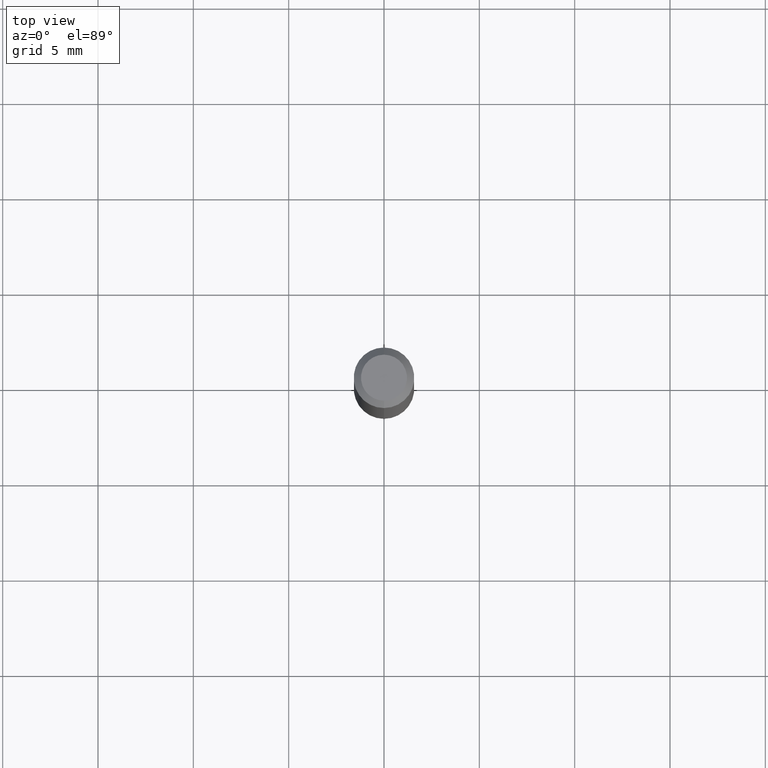
[diagram: clean part render]
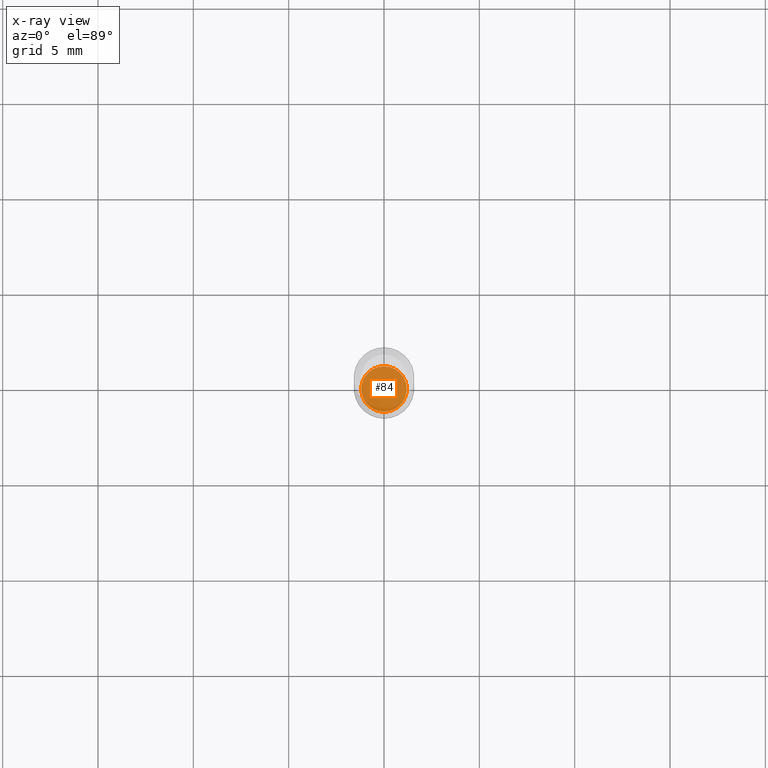
[diagram: x-ray — body ghosted, one internal face saturated and labeled with its STEP entity id]
A machine part, top view, then the same camera in x-ray: the body is ghosted and one INTERNAL B-rep face — a face not visible from any outside direction — is saturated and labeled: STEP entity #84.
In plain terms, the highlighted planar face has unit normal (-0, 0, 1).
Its self-contained STEP definition (entity closure, byte-faithful):
#4 = CIRCLE ( 'NONE', #240, 0.04699999999999999317 ) ;
#17 = DIRECTION ( 'NONE',  ( -2.445438376060173173E-29, 3.491524916514068118E-15, 1.000000000000000000 ) ) ;
#64 = DIRECTION ( 'NONE',  ( -6.982962677686265922E-15, -1.000000000000000000, 3.491524916514068512E-15 ) ) ;
#84 = ADVANCED_FACE ( 'NONE', ( #268 ), #457, .F. ) ;
#97 = VERTEX_POINT ( 'NONE', #263 ) ;
#104 = CARTESIAN_POINT ( 'NONE',  ( 3.319682595501686521E-29, -4.739745074167848632E-15, -1.357500000000000373 ) ) ;
#113 = AXIS2_PLACEMENT_3D ( 'NONE', #289, #17, #300 ) ;
#132 = EDGE_LOOP ( 'NONE', ( #480, #361 ) ) ;
#181 = AXIS2_PLACEMENT_3D ( 'NONE', #104, #406, #64 ) ;
#213 = EDGE_CURVE ( 'NONE', #97, #247, #429, .T. ) ;
#227 = CARTESIAN_POINT ( 'NONE',  ( 3.319682595501686521E-29, -4.739745074167848632E-15, -1.357500000000000373 ) ) ;
#240 = AXIS2_PLACEMENT_3D ( 'NONE', #227, #264, #373 ) ;
#247 = VERTEX_POINT ( 'NONE', #490 ) ;
#263 = CARTESIAN_POINT ( 'NONE',  ( -3.281992458512213224E-16, -0.04700000000000473244, -1.357500000000000151 ) ) ;
#264 = DIRECTION ( 'NONE',  ( -2.445438376060173173E-29, 3.491524916514068118E-15, 1.000000000000000000 ) ) ;
#268 = FACE_OUTER_BOUND ( 'NONE', #132, .T. ) ;
#289 = CARTESIAN_POINT ( 'NONE',  ( 3.319682595501686521E-29, -4.739745074167848632E-15, -1.357500000000000373 ) ) ;
#300 = DIRECTION ( 'NONE',  ( -6.982962677686266711E-15, -1.000000000000000000, 5.812442539711199378E-15 ) ) ;
#302 = EDGE_CURVE ( 'NONE', #247, #97, #4, .T. ) ;
#361 = ORIENTED_EDGE ( 'NONE', *, *, #302, .F. ) ;
#373 = DIRECTION ( 'NONE',  ( -6.982962677686266711E-15, -1.000000000000000000, 5.812442539711199378E-15 ) ) ;
#406 = DIRECTION ( 'NONE',  ( -2.445438376060172613E-29, 3.491524916514068512E-15, 1.000000000000000000 ) ) ;
#429 = CIRCLE ( 'NONE', #113, 0.04699999999999999317 ) ;
#457 = PLANE ( 'NONE',  #181 ) ;
#480 = ORIENTED_EDGE ( 'NONE', *, *, #213, .F. ) ;
#490 = CARTESIAN_POINT ( 'NONE',  ( 3.357314426466811133E-16, 0.04699999999999526085, -1.357500000000000817 ) ) ;